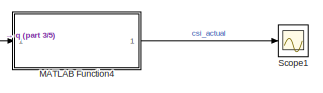
[diagram: root canvas - part 1/5, top center region]
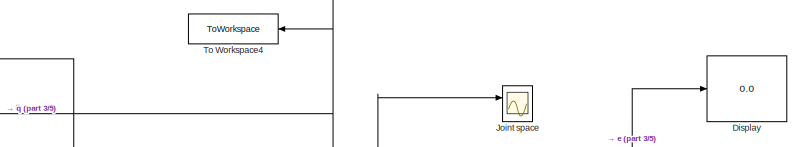
[diagram: root canvas - part 2/5, top center region]
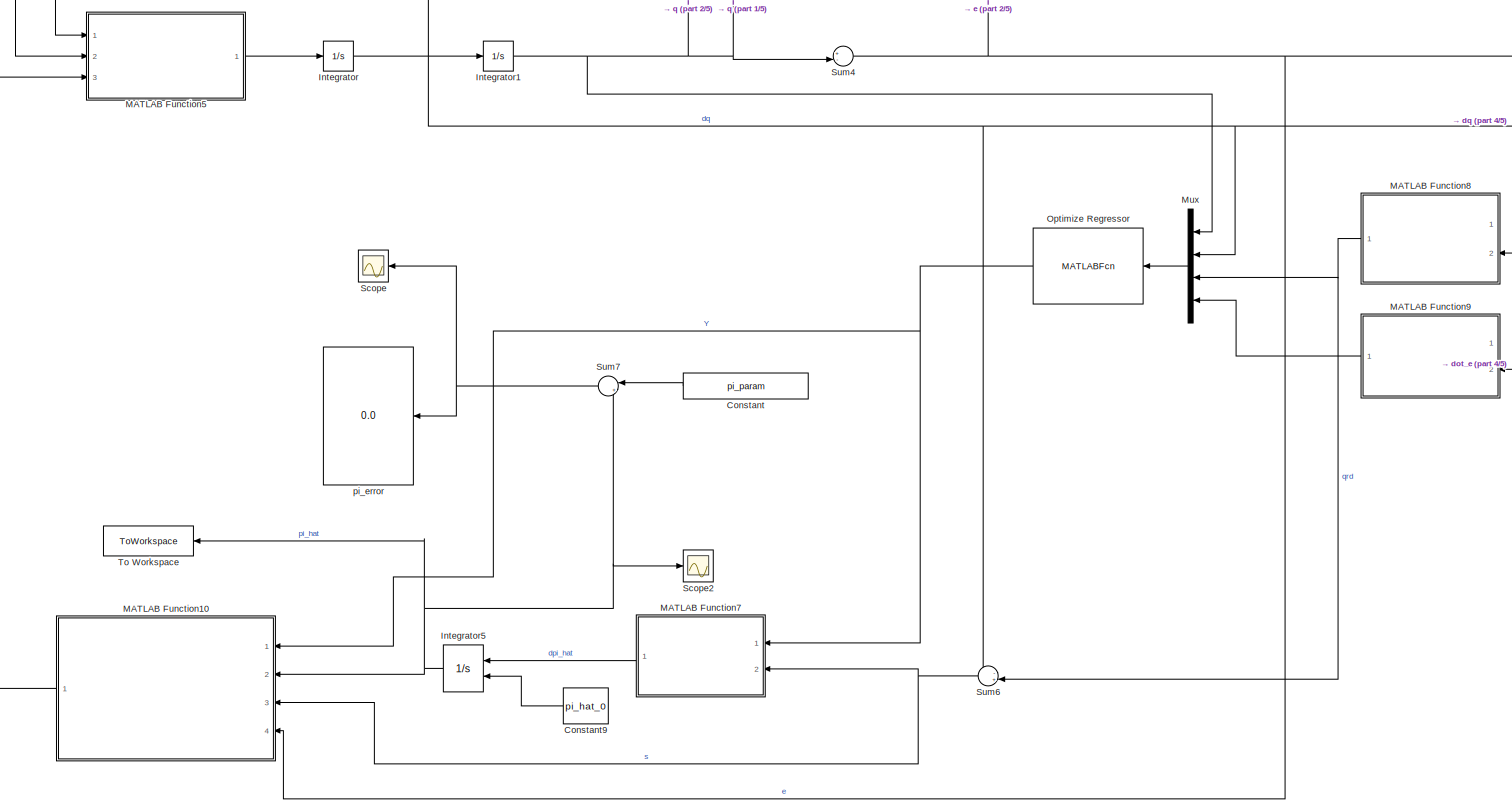
[diagram: root canvas - part 3/5, full width, middle band]
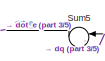
[diagram: root canvas - part 4/5, middle right region]
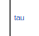
[diagram: root canvas - part 5/5, middle left region]
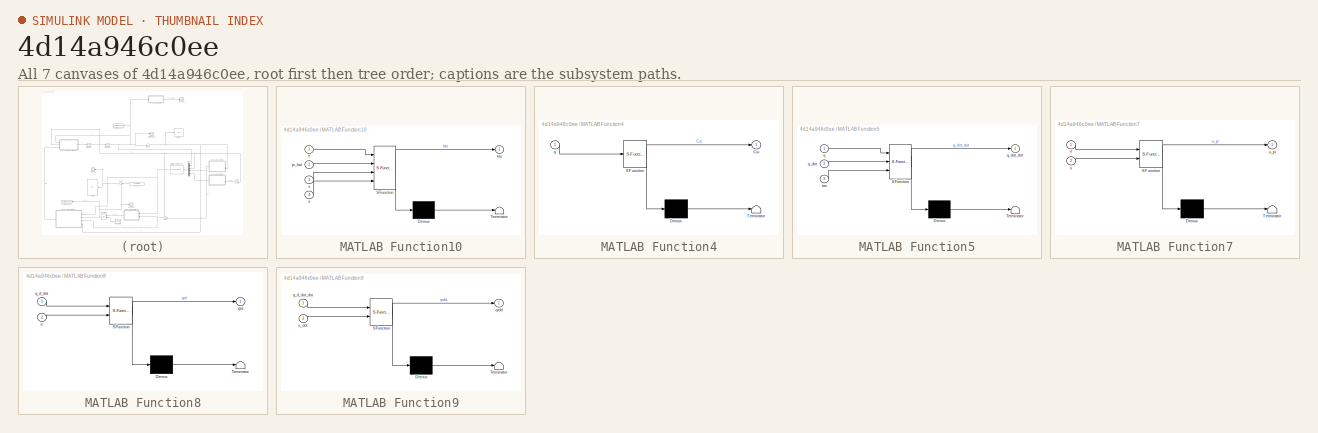
[diagram: thumbnail index - all 7 canvases of the model, root first then tree order]
MODEL slx_4d14a946c0ee
KIND model
CONFIG AbsTol = auto
CONFIG EnableMultiTasking = off
CONFIG FixedStep = 1e-2
CONFIG MaxStep = auto
CONFIG MinStep = auto
CONFIG RelTol = 1e-3
CONFIG SampleTimeConstraint = Unconstrained
CONFIG Solver = VariableStepAuto
CONFIG SolverName = VariableStepAuto
CONFIG StartTime = 0.0
CONFIG StopTime = 30
BLOCK [Constant] Constant
  Value = pi_param
BLOCK [Constant] Constant9
  Value = pi_hat_0
BLOCK [Display] Display
  Decimation = 1
  Ports = [1]
BLOCK [Integrator] Integrator
  InitialCondition = qInitial_0
  Ports = [1, 1]
BLOCK [Integrator] Integrator1
  InitialCondition = [0,0]'
  Ports = [1, 1]
BLOCK [Integrator] Integrator5
  InitialConditionSource = external
  Ports = [2, 1]
BLOCK [Scope] Joint space
  Floating = off
  NumInputPorts = 2
  Ports = [2]
  ScopeSpecificationString = Simulink.scopes.TimeScopeBlockCfg('CurrentConfiguration', extmgr.ConfigurationSet(extmgr.Configuration('Core','General UI',true,'FigureColor',[1 1 1]),extmgr.Configuration('Core','Source UI',true),extmgr.Configuration('Sources','WiredSimulink',true,'DataLoggingVariableName','ScopeData1'),extmgr.Configuration('Visuals','Time Domain',true,'SerializedDisplays',{struct('MinYLimReal','-5.42099','MaxYLi...<+1900ch>
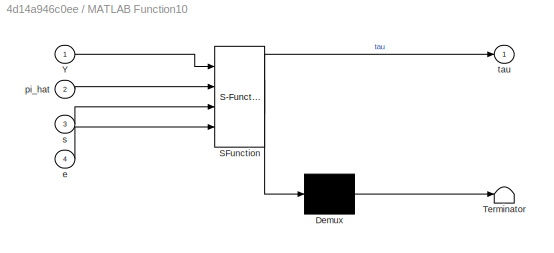
BLOCK [SubSystem] MATLAB Function10
  ErrorFcn = Stateflow.Translate.translate
  PermitHierarchicalResolution = ExplicitOnly
  Ports = [4, 1]
  RequestExecContextInheritance = off
  SFBlockType = MATLAB Function
  TreatAsAtomicUnit = on
BLOCK [Demux] MATLAB Function10/ Demux 
  Outputs = 1
  Ports = [1, 1]
BLOCK [S-Function] MATLAB Function10/ SFunction 
  EnableBusSupport = on
  FunctionName = sf_sfun
  PortCounts = [4 2]
  Ports = [4, 2]
  SFcnIsStateOwnerBlock = off
  SFunctionDeploymentMode = off
  Tag = Stateflow S-Function 17
BLOCK [Terminator] MATLAB Function10/ Terminator 
BLOCK [Inport] MATLAB Function10/Y
  IconDisplay = Port number
BLOCK [Inport] MATLAB Function10/e
  IconDisplay = Port number
  Port = 4
BLOCK [Inport] MATLAB Function10/pi_hat
  IconDisplay = Port number
  Port = 2
BLOCK [Inport] MATLAB Function10/s
  IconDisplay = Port number
  Port = 3
BLOCK [Outport] MATLAB Function10/tau
  IconDisplay = Port number
BLOCK [SubSystem] MATLAB Function4
  ErrorFcn = Stateflow.Translate.translate
  PermitHierarchicalResolution = ExplicitOnly
  Ports = [1, 1]
  RequestExecContextInheritance = off
  SFBlockType = MATLAB Function
  TreatAsAtomicUnit = on
BLOCK [Demux] MATLAB Function4/ Demux 
  Outputs = 1
  Ports = [1, 1]
BLOCK [S-Function] MATLAB Function4/ SFunction 
  EnableBusSupport = on
  FunctionName = sf_sfun
  PortCounts = [1 2]
  Ports = [1, 2]
  SFcnIsStateOwnerBlock = off
  SFunctionDeploymentMode = off
  Tag = Stateflow S-Function 13
BLOCK [Terminator] MATLAB Function4/ Terminator 
BLOCK [Outport] MATLAB Function4/Csi
  IconDisplay = Port number
BLOCK [Inport] MATLAB Function4/q
  IconDisplay = Port number
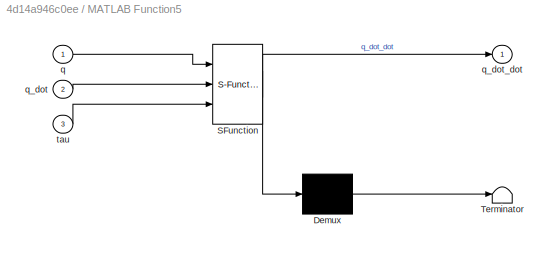
BLOCK [SubSystem] MATLAB Function5
  ErrorFcn = Stateflow.Translate.translate
  PermitHierarchicalResolution = ExplicitOnly
  Ports = [3, 1]
  RequestExecContextInheritance = off
  SFBlockType = MATLAB Function
  TreatAsAtomicUnit = on
BLOCK [Demux] MATLAB Function5/ Demux 
  Outputs = 1
  Ports = [1, 1]
BLOCK [S-Function] MATLAB Function5/ SFunction 
  EnableBusSupport = on
  FunctionName = sf_sfun
  PortCounts = [3 2]
  Ports = [3, 2]
  SFcnIsStateOwnerBlock = off
  SFunctionDeploymentMode = off
  Tag = Stateflow S-Function 5
BLOCK [Terminator] MATLAB Function5/ Terminator 
BLOCK [Inport] MATLAB Function5/q
  IconDisplay = Port number
BLOCK [Inport] MATLAB Function5/q_dot
  IconDisplay = Port number
  Port = 2
BLOCK [Outport] MATLAB Function5/q_dot_dot
  IconDisplay = Port number
BLOCK [Inport] MATLAB Function5/tau
  IconDisplay = Port number
  Port = 3
BLOCK [SubSystem] MATLAB Function7
  ErrorFcn = Stateflow.Translate.translate
  PermitHierarchicalResolution = ExplicitOnly
  Ports = [2, 1]
  RequestExecContextInheritance = off
  SFBlockType = MATLAB Function
  TreatAsAtomicUnit = on
BLOCK [Demux] MATLAB Function7/ Demux 
  Outputs = 1
  Ports = [1, 1]
BLOCK [S-Function] MATLAB Function7/ SFunction 
  EnableBusSupport = on
  FunctionName = sf_sfun
  PortCounts = [2 2]
  Ports = [2, 2]
  SFcnIsStateOwnerBlock = off
  SFunctionDeploymentMode = off
  Tag = Stateflow S-Function 21
BLOCK [Terminator] MATLAB Function7/ Terminator 
BLOCK [Inport] MATLAB Function7/Y
  IconDisplay = Port number
BLOCK [Inport] MATLAB Function7/s
  IconDisplay = Port number
  Port = 2
BLOCK [Outport] MATLAB Function7/u_pi
  IconDisplay = Port number
BLOCK [SubSystem] MATLAB Function8
  ErrorFcn = Stateflow.Translate.translate
  PermitHierarchicalResolution = ExplicitOnly
  Ports = [2, 1]
  RequestExecContextInheritance = off
  SFBlockType = MATLAB Function
  TreatAsAtomicUnit = on
BLOCK [Demux] MATLAB Function8/ Demux 
  Outputs = 1
  Ports = [1, 1]
BLOCK [S-Function] MATLAB Function8/ SFunction 
  EnableBusSupport = on
  FunctionName = sf_sfun
  PortCounts = [2 2]
  Ports = [2, 2]
  SFcnIsStateOwnerBlock = off
  SFunctionDeploymentMode = off
  Tag = Stateflow S-Function 22
BLOCK [Terminator] MATLAB Function8/ Terminator 
BLOCK [Inport] MATLAB Function8/e
  IconDisplay = Port number
  Port = 2
BLOCK [Inport] MATLAB Function8/q_d_dot
  IconDisplay = Port number
BLOCK [Outport] MATLAB Function8/qrd
  IconDisplay = Port number
BLOCK [SubSystem] MATLAB Function9
  ErrorFcn = Stateflow.Translate.translate
  PermitHierarchicalResolution = ExplicitOnly
  Ports = [2, 1]
  RequestExecContextInheritance = off
  SFBlockType = MATLAB Function
  TreatAsAtomicUnit = on
BLOCK [Demux] MATLAB Function9/ Demux 
  Outputs = 1
  Ports = [1, 1]
BLOCK [S-Function] MATLAB Function9/ SFunction 
  EnableBusSupport = on
  FunctionName = sf_sfun
  PortCounts = [2 2]
  Ports = [2, 2]
  SFcnIsStateOwnerBlock = off
  SFunctionDeploymentMode = off
  Tag = Stateflow S-Function 23
BLOCK [Terminator] MATLAB Function9/ Terminator 
BLOCK [Inport] MATLAB Function9/e_dot
  IconDisplay = Port number
  Port = 2
BLOCK [Inport] MATLAB Function9/q_d_dot_dot
  IconDisplay = Port number
BLOCK [Outport] MATLAB Function9/qrdd
  IconDisplay = Port number
BLOCK [Mux] Mux
  DisplayOption = bar
  Ports = [4, 1]
BLOCK [MATLABFcn] Optimize Regressor 
  MATLABFcn = New_Regressor_Simulink
  Output1D = off
  OutputDimensions = [2,6]
  Ports = [1, 1]
BLOCK [Scope] Scope
  Floating = off
  NumInputPorts = 1
  Ports = [1]
  ScopeSpecificationString = Simulink.scopes.TimeScopeBlockCfg('CurrentConfiguration', extmgr.ConfigurationSet(extmgr.Configuration('Core','General UI',true),extmgr.Configuration('Core','Source UI',true),extmgr.Configuration('Sources','WiredSimulink',true,'DataLoggingVariableName','ScopeData1'),extmgr.Configuration('Visuals','Time Domain',true,'SerializedDisplays',{struct('MinYLimReal','-60.50721','MaxYLimReal','61.56047','YL...<+1426ch>
BLOCK [Scope] Scope1
  Floating = off
  NumInputPorts = 1
  Ports = [1]
  ScopeSpecificationString = Simulink.scopes.TimeScopeBlockCfg('CurrentConfiguration', extmgr.ConfigurationSet(extmgr.Configuration('Core','General UI',true),extmgr.Configuration('Core','Source UI',true),extmgr.Configuration('Sources','WiredSimulink',true,'DataLoggingVariableName','ScopeData1'),extmgr.Configuration('Visuals','Time Domain',true),extmgr.Configuration('Tools','Plot Navigation',true),extmgr.Configuration('Tools',...<+40ch>
BLOCK [Scope] Scope2
  Floating = off
  NumInputPorts = 1
  Ports = [1]
  ScopeSpecificationString = Simulink.scopes.TimeScopeBlockCfg('CurrentConfiguration', extmgr.ConfigurationSet(extmgr.Configuration('Core','General UI',true),extmgr.Configuration('Core','Source UI',true),extmgr.Configuration('Sources','WiredSimulink',true,'DataLoggingVariableName','ScopeData1'),extmgr.Configuration('Visuals','Time Domain',true,'SerializedDisplays',{struct('MinYLimReal','-10.91182','MaxYLimReal','18.01358','YL...<+1568ch>
BLOCK [Sum] Sum4
  IconShape = round
  InputSameDT = off
  Inputs = +-|
  OutDataTypeStr = Inherit: Inherit via internal rule
  Ports = [2, 1]
  SaturateOnIntegerOverflow = off
BLOCK [Sum] Sum5
  IconShape = round
  InputSameDT = off
  Inputs = |-+
  OutDataTypeStr = Inherit: Inherit via internal rule
  Ports = [2, 1]
  SaturateOnIntegerOverflow = off
BLOCK [Sum] Sum6
  IconShape = round
  InputSameDT = off
  Inputs = -+|
  OutDataTypeStr = Inherit: Inherit via internal rule
  Ports = [2, 1]
  SaturateOnIntegerOverflow = off
BLOCK [Sum] Sum7
  IconShape = round
  InputSameDT = off
  Inputs = |+-
  OutDataTypeStr = Inherit: Inherit via internal rule
  Ports = [2, 1]
  SaturateOnIntegerOverflow = off
BLOCK [ToWorkspace] To Workspace
  FixptAsFi = on
  MaxDataPoints = inf
  Ports = [1]
  SampleTime = -1
  SaveFormat = Timeseries
  VariableName = PI
BLOCK [ToWorkspace] To Workspace4
  FixptAsFi = on
  MaxDataPoints = inf
  Ports = [1]
  SampleTime = -1
  SaveFormat = Timeseries
  VariableName = q_out
BLOCK [Display] pi_error
  Decimation = 1
  Ports = [1]
LINE Constant9:1 -> Integrator5:2
LINE Constant:1 -> Sum7:1
NET Integrator1:1 -> Joint space:1, MATLAB Function4:1, MATLAB Function5:1, Mux:1, Sum4:2, To Workspace4:1
NET Integrator5:1 -> MATLAB Function10:2, Scope2:1, Sum7:2, To Workspace:1
NET Integrator:1 -> Integrator1:1, MATLAB Function5:2, Mux:2, Sum5:1, Sum6:1
LINE MATLAB Function10:1 -> MATLAB Function5:3
LINE MATLAB Function4:1 -> Scope1:1
LINE MATLAB Function5:1 -> Integrator:1
LINE MATLAB Function7:1 -> Integrator5:1
NET MATLAB Function8:1 -> Mux:3, Sum6:2
LINE MATLAB Function9:1 -> Mux:4
LINE Mux:1 -> Optimize Regressor :1
NET Optimize Regressor :1 -> MATLAB Function10:1, MATLAB Function7:1
NET Sum4:1 -> Display:1, MATLAB Function10:4, MATLAB Function8:2
LINE Sum5:1 -> MATLAB Function9:2
NET Sum6:1 -> MATLAB Function10:3, MATLAB Function7:2
NET Sum7:1 -> Scope:1, pi_error:1
note: NET lines group one-source signal fan-out (src -> all destinations, sorted); 1:1 wires keep LINE
CHART MATLAB Function5 states=1 transitions=1
  STATE_LABEL 'eML_blk_kernel()'
  STATE_LABEL 'SCRIPT:\nfunction q_dot_dot = Forward_Dynamics(q,q_dot,tau)\n\nm1 = 1;\nm2 = 1;\n\nl1=1;\nl2=1;\n\nr1=l1/2;\nr2=l2/2;\n\n\nIzz1 = (1/12)*m1*l1^2;\nIzz2 = (1/12)*m2*l2^2;\n\n\n\nAlpha = Izz1 + Izz2 + m1*(r1)^2 + m2*(l1^2+r2^2);\nBeta = m2*l1*r2;\nDelta = Izz2 +m2*r2^2;\n\nM = [Alpha + 2* Beta *cos(q(2)), Delta + Beta *cos(q(2));\n     Delta + Beta *cos(q(2)),    Delta];\n\nC = [-Beta*sin(q(2))*q_dot(2), -Beta*sin(q(2))*(q_...<+120ch>'
CHART MATLAB Function4 states=1 transitions=1
  STATE_LABEL 'eML_blk_kernel()'
  STATE_LABEL "SCRIPT:\nfunction Csi  = Direct_Kinematics_RR(q)\n\n%INPUT: q(1) = q1;\n%       q(2) = q2;\n\n%OUTPUT: px = position along x axis\n%        py = position along y axis\n\n%Link's lenght\n\nl1 = 1;\nl2 = 1;\n\npx = l1 * cos(q(1)) + l2 * cos(q(1)+q(2));\npy = l1 * sin(q(1)) + l2 * sin(q(1)+q(2));\n\nCsi = [px; py];\nend"
CHART MATLAB Function10 states=1 transitions=1
  STATE_LABEL 'eML_blk_kernel()'
  STATE_LABEL 'SCRIPT:\nfunction tau = Back_Stepping_Control_Law(Y,pi_hat,s,e)\n\nKd = 10 * eye(2);\nKp = 10 * eye(2);\n\ntau = Y * pi_hat + Kd * s + Kp * e;\n\nend'
CHART MATLAB Function7 states=1 transitions=1
  STATE_LABEL 'eML_blk_kernel()'
  STATE_LABEL "SCRIPT:\nfunction u_pi = Update_Law(Y,s)\n\nR = eye(2,4);\nu_pi = pinv(R).*(Y.')*s;\nend\n\n\n"
CHART MATLAB Function8 states=1 transitions=1
  STATE_LABEL 'eML_blk_kernel()'
  STATE_LABEL 'SCRIPT:\nfunction qrd = q_r_dot(q_d_dot,e)\n\nlambda = 7  * eye(2);\nqrd = q_d_dot + lambda * e;\n\nend\n\n'
CHART MATLAB Function9 states=1 transitions=1
  STATE_LABEL 'eML_blk_kernel()'
  STATE_LABEL 'SCRIPT:\nfunction qrdd = q_r_dot_dot(q_d_dot_dot,e_dot)\n\nlambda = 7 * eye(2);\nqrdd = q_d_dot_dot + lambda*e_dot;\n\nend\n\n'
